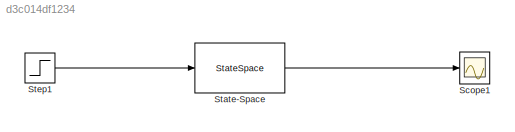
MODEL slx_d3c014df1234
KIND model
CONFIG AbsTol = auto
CONFIG EnableMultiTasking = off
CONFIG FixedStep = auto
CONFIG MaxStep = auto
CONFIG MinStep = auto
CONFIG RelTol = 1e-3
CONFIG SampleTimeConstraint = Unconstrained
CONFIG Solver = VariableStepAuto
CONFIG SolverName = VariableStepAuto
CONFIG StartTime = 0.0
CONFIG StopTime = 10.0
BLOCK [Scope] Scope1
  Floating = off
  NumInputPorts = 1
  Ports = [1]
  ScopeSpecificationString = Simulink.scopes.TimeScopeBlockCfg('CurrentConfiguration', extmgr.ConfigurationSet(extmgr.Configuration('Core','General UI',true),extmgr.Configuration('Core','Source UI',true),extmgr.Configuration('Sources','WiredSimulink',true,'DataLoggingVariableName','ScopeData1'),extmgr.Configuration('Visuals','Time Domain',true,'SerializedDisplays',{struct('MinYLimReal','-0.01684','MaxYLimReal','0.06249','YLab...<+1399ch>
BLOCK [StateSpace] State-Space
  A = [0 1; -1 -1]
  B = [0;1]
  C = [0 1]
  D = [0]
  InitialCondition = 0
  Ports = [1, 1]
BLOCK [Step] Step1
  Before = 0.1
  SampleTime = 15
LINE State-Space:1 -> Scope1:1
LINE Step1:1 -> State-Space:1
